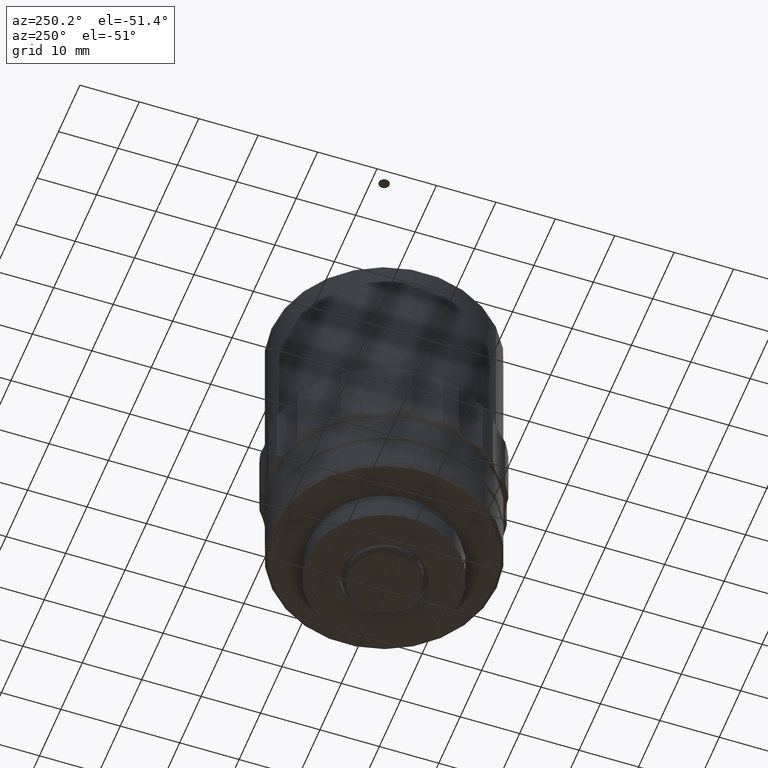
[diagram: clean part render]
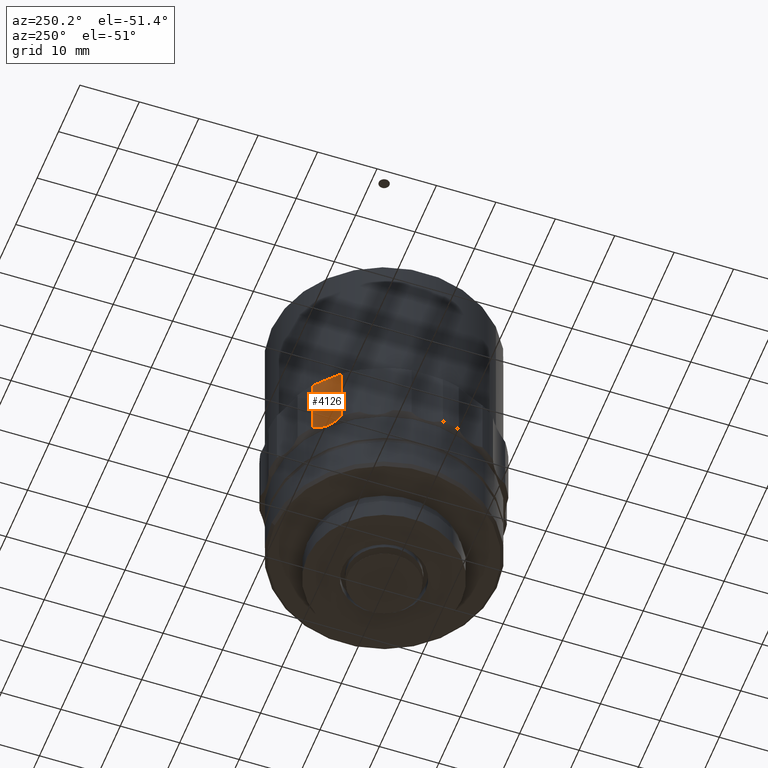
[diagram: same view with one face highlighted and labeled with its STEP entity id]
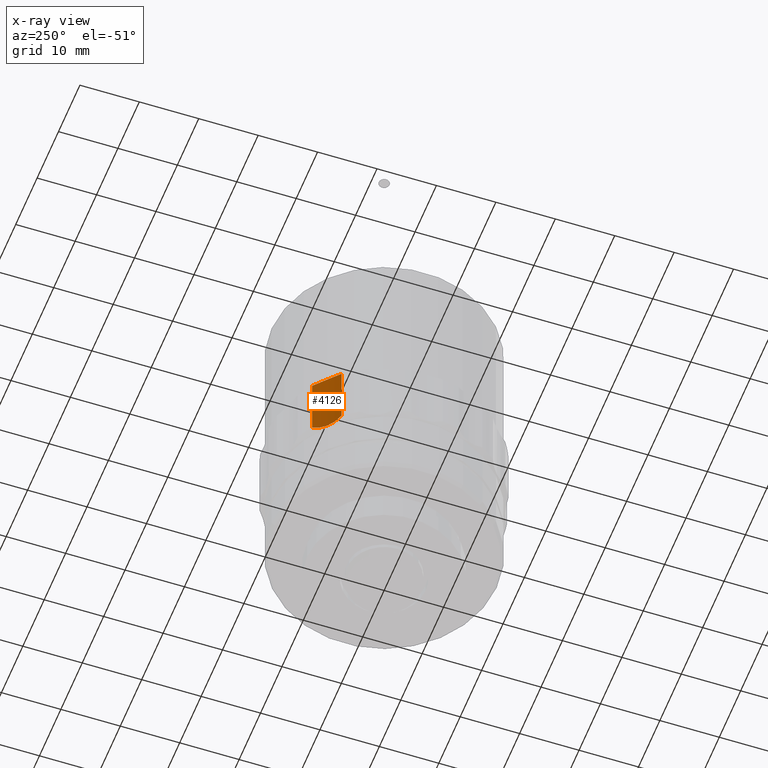
[diagram: x-ray of the same camera — body ghosted, the highlighted face saturated]
A machine part, auxiliary view. The second image highlights one B-rep face of the part: STEP entity #4126.
The next image is the same camera in x-ray: the body ghosted, the highlighted face saturated — about 0% of this face is hidden behind the body in this view.
In plain terms, the highlighted cylindrical surface (partial cylindrical patch) has radius 9.5 mm, axis along (-0, -0, -1).
Its self-contained STEP definition (entity closure, byte-faithful):
#25 = CARTESIAN_POINT ( 'NONE',  ( -14.81469892391793941, 12.80460770051730535, 28.16245729244638696 ) ) ;
#67 = CARTESIAN_POINT ( 'NONE',  ( -15.19730273181991365, 12.61366281765215192, 27.98999999999999488 ) ) ;
#113 = CARTESIAN_POINT ( 'NONE',  ( -12.36132747486146854, 14.77338446782992065, 28.47854720513941729 ) ) ;
#306 = CARTESIAN_POINT ( 'NONE',  ( -13.88727003771823298, 13.40203776361019194, 16.93827319148724797 ) ) ;
#443 = FACE_OUTER_BOUND ( 'NONE', #2685, .T. ) ;
#584 = B_SPLINE_CURVE_WITH_KNOTS ( 'NONE', 3,
 ( #2406, #3763, #1828, #3114, #113, #1488, #1097, #3394, #1441, #2801, #1119, #25, #67 ),
 .UNSPECIFIED., .F., .F.,
 ( 4, 2, 2, 1, 2, 2, 4 ),
 ( 2.228292650859249836E-17, 0.001365790786509440231, 0.002048686179764148095, 0.002731581573018856610, 0.003414476966273565124, 0.004097372359528273639, 0.005463163146037690668 ),
 .UNSPECIFIED. ) ;
#610 = CARTESIAN_POINT ( 'NONE',  ( -11.31790351918232673, 16.18541194812421224, 17.38999999999997570 ) ) ;
#649 = CARTESIAN_POINT ( 'NONE',  ( -13.34597495332179662, 13.82201388901473749, 16.85227143250812176 ) ) ;
#664 = CARTESIAN_POINT ( 'NONE',  ( -11.31790351918232318, 16.18541194812421580, 34.68999999999999062 ) ) ;
#824 = DIRECTION ( 'NONE',  ( 0.01109414005692095986, -0.9999384581344979983, 0.000000000000000000 ) ) ;
#859 = ORIENTED_EDGE ( 'NONE', *, *, #2554, .F. ) ;
#957 = CARTESIAN_POINT ( 'NONE',  ( -15.19730273181991365, 12.61366281765215014, 17.39000000000000057 ) ) ;
#1062 = EDGE_CURVE ( 'NONE', #2032, #2175, #584, .T. ) ;
#1097 = CARTESIAN_POINT ( 'NONE',  ( -12.99866902259678447, 14.11957024509717584, 28.55217240755788666 ) ) ;
#1119 = CARTESIAN_POINT ( 'NONE',  ( -14.43775555632073804, 13.02469624223927624, 28.30039688120328378 ) ) ;
#1192 = CARTESIAN_POINT ( 'NONE',  ( -15.19730273181991365, 12.61366281765215192, 27.98999999999999488 ) ) ;
#1441 = CARTESIAN_POINT ( 'NONE',  ( -13.69766812682638246, 13.54204119338722734, 28.47962112277900104 ) ) ;
#1445 = VERTEX_POINT ( 'NONE', #610 ) ;
#1488 = CARTESIAN_POINT ( 'NONE',  ( -12.67476023814047004, 14.43999890264754704, 28.52772856749188080 ) ) ;
#1565 = EDGE_CURVE ( 'NONE', #2175, #4009, #2452, .T. ) ;
#1569 = B_SPLINE_CURVE_WITH_KNOTS ( 'NONE', 3,
 ( #957, #1699, #3037, #306, #1992, #649, #2030, #2682, #4046, #3334, #2956, #4295, #3316 ),
 .UNSPECIFIED., .F., .F.,
 ( 4, 2, 2, 1, 2, 2, 4 ),
 ( 0.000000000000000000, 0.001365790786509428088, 0.002048686179764140289, 0.002731581573018853140, 0.003414476966273565992, 0.004097372359528278843, 0.005463163146037706280 ),
 .UNSPECIFIED. ) ;
#1668 = AXIS2_PLACEMENT_3D ( 'NONE', #2807, #4148, #824 ) ;
#1699 = CARTESIAN_POINT ( 'NONE',  ( -14.81495764448459340, 12.80447858165524622, 17.21765932491993567 ) ) ;
#1732 = CARTESIAN_POINT ( 'NONE',  ( -15.19730273181991365, 12.61366281765214303, -5.893572936552369690 ) ) ;
#1810 = CYLINDRICAL_SURFACE ( 'NONE', #1668, 9.500000000000012434 ) ;
#1828 = CARTESIAN_POINT ( 'NONE',  ( -11.78912308735575465, 15.46401668766333692, 28.29960168341980520 ) ) ;
#1992 = CARTESIAN_POINT ( 'NONE',  ( -13.70406432634040783, 13.53713139903014273, 16.90145279486057461 ) ) ;
#2030 = CARTESIAN_POINT ( 'NONE',  ( -12.99993477030457889, 14.11840487566061242, 16.82782759244211235 ) ) ;
#2032 = VERTEX_POINT ( 'NONE', #2704 ) ;
#2175 = VERTEX_POINT ( 'NONE', #1192 ) ;
#2406 = CARTESIAN_POINT ( 'NONE',  ( -11.31790351918232140, 16.18541194812421935, 27.98999999999998778 ) ) ;
#2452 = LINE ( 'NONE', #1732, #2971 ) ;
#2498 = ORIENTED_EDGE ( 'NONE', *, *, #2975, .F. ) ;
#2554 = EDGE_CURVE ( 'NONE', #4009, #1445, #1569, .T. ) ;
#2682 = CARTESIAN_POINT ( 'NONE',  ( -12.67748204473017637, 14.43731350818837988, 16.85207367845032422 ) ) ;
#2685 = EDGE_LOOP ( 'NONE', ( #2498, #859, #3053, #3841 ) ) ;
#2704 = CARTESIAN_POINT ( 'NONE',  ( -11.31790351918232140, 16.18541194812421935, 27.98999999999998778 ) ) ;
#2801 = CARTESIAN_POINT ( 'NONE',  ( -13.88123983230581437, 13.40633007908618346, 28.44310456579044200 ) ) ;
#2807 = CARTESIAN_POINT ( 'NONE',  ( -19.43948521421895137, 21.11389150787143976, 34.68999999999999062 ) ) ;
#2956 = CARTESIAN_POINT ( 'NONE',  ( -11.79015295203826952, 15.46233459326938586, 17.07960311879671877 ) ) ;
#2971 = VECTOR ( 'NONE', #3111, 1000.000000000000000 ) ;
#2975 = EDGE_CURVE ( 'NONE', #1445, #2032, #3954, .T. ) ;
#3037 = CARTESIAN_POINT ( 'NONE',  ( -14.43951682460841823, 13.02380855038208374, 17.08039831658019736 ) ) ;
#3053 = ORIENTED_EDGE ( 'NONE', *, *, #1565, .F. ) ;
#3111 = DIRECTION ( 'NONE',  ( -1.734723475976809020E-18, -1.474514954580309450E-17, -1.000000000000000000 ) ) ;
#3114 = CARTESIAN_POINT ( 'NONE',  ( -12.21159066944813709, 14.94482982972998641, 28.44172680851275103 ) ) ;
#3316 = CARTESIAN_POINT ( 'NONE',  ( -11.31790351918232673, 16.18541194812421224, 17.38999999999997570 ) ) ;
#3334 = CARTESIAN_POINT ( 'NONE',  ( -12.21636548916257325, 14.93917399679788360, 16.93689543420956056 ) ) ;
#3394 = CARTESIAN_POINT ( 'NONE',  ( -13.34307432072903943, 13.82450505441971522, 28.52792632154966768 ) ) ;
#3497 = CARTESIAN_POINT ( 'NONE',  ( -15.19730273181991365, 12.61366281765215014, 17.39000000000000057 ) ) ;
#3763 = CARTESIAN_POINT ( 'NONE',  ( -11.53958931333868421, 15.82009861648846183, 28.16234067508004912 ) ) ;
#3841 = ORIENTED_EDGE ( 'NONE', *, *, #1062, .F. ) ;
#3954 = LINE ( 'NONE', #664, #4010 ) ;
#4009 = VERTEX_POINT ( 'NONE', #3497 ) ;
#4010 = VECTOR ( 'NONE', #4315, 1000.000000000000000 ) ;
#4046 = CARTESIAN_POINT ( 'NONE',  ( -12.36674784329963650, 14.76741478987827705, 16.90037887722100862 ) ) ;
#4126 = ADVANCED_FACE ( 'NONE', ( #443 ), #1810, .F. ) ;
#4148 = DIRECTION ( 'NONE',  ( -1.734723475976809020E-18, -1.474514954580309450E-17, -1.000000000000000000 ) ) ;
#4295 = CARTESIAN_POINT ( 'NONE',  ( -11.53973932095270349, 15.81985142076057471, 17.21754270755361205 ) ) ;
#4315 = DIRECTION ( 'NONE',  ( 1.734723475976809020E-18, 1.474514954580309450E-17, 1.000000000000000000 ) ) ;